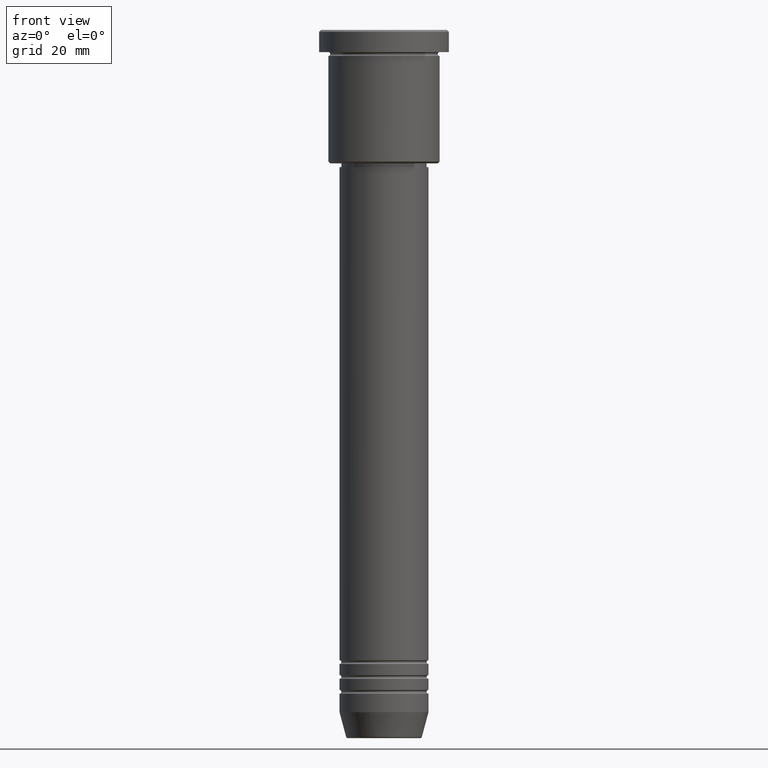
[diagram: clean part render]
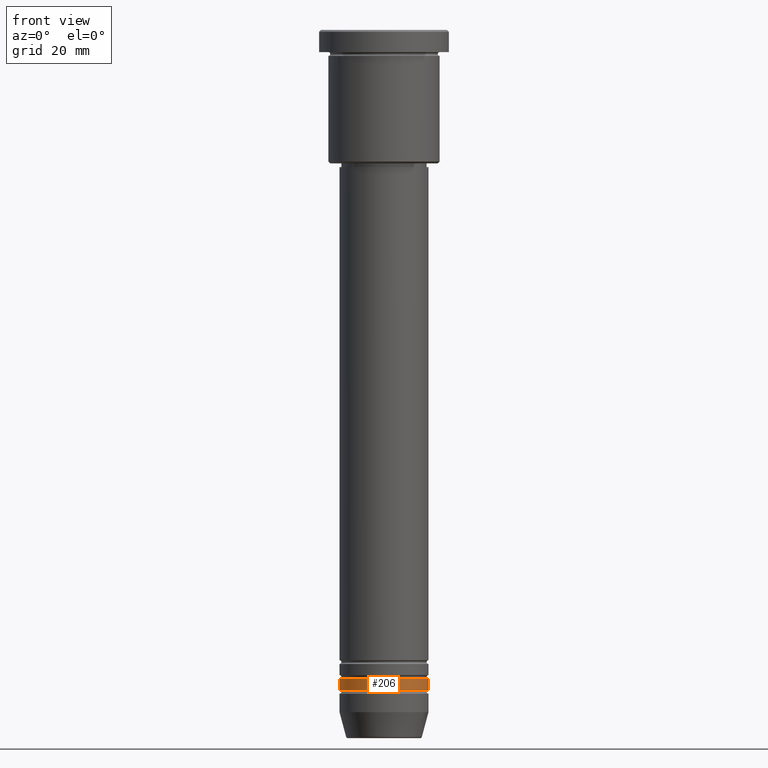
[diagram: same view with one face highlighted and labeled with its STEP entity id]
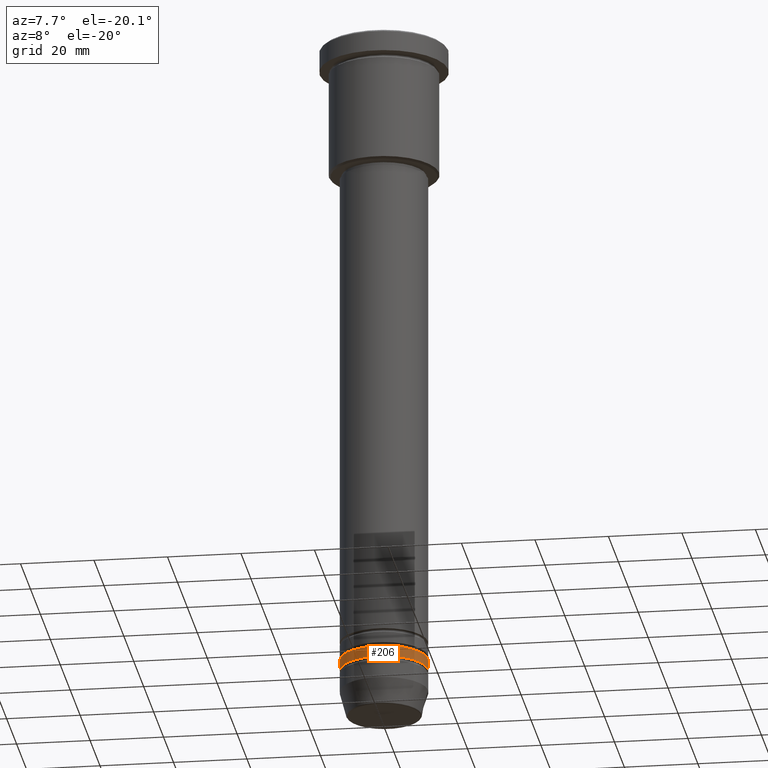
[diagram: same view with one face highlighted and labeled with its STEP entity id]
A machine part, front view. The second image highlights one B-rep face of the part: STEP entity #206.
A second angle (auxiliary view) of the same face is appended — the face is thin or edge-on in the first view.
In plain terms, the highlighted cylindrical surface (partial cylindrical patch) has radius 12 mm, axis along (-0, -0, 1).
Its self-contained STEP definition (entity closure, byte-faithful):
#1 = CARTESIAN_POINT ( 'NONE',  ( -12.00000000000000000, 1.469576158976823947E-15, 0.000000000000000000 ) ) ;
#17 = EDGE_CURVE ( 'NONE', #1001, #244, #391, .T. ) ;
#19 = ORIENTED_EDGE ( 'NONE', *, *, #878, .F. ) ;
#55 = VECTOR ( 'NONE', #733, 1000.000000000000000 ) ;
#116 = DIRECTION ( 'NONE',  ( 1.000000000000000000, 0.000000000000000000, 0.000000000000000000 ) ) ;
#125 = EDGE_CURVE ( 'NONE', #503, #1001, #816, .T. ) ;
#172 = CARTESIAN_POINT ( 'NONE',  ( -12.00000000000000000, 1.469576158976823947E-15, -174.9999999999999147 ) ) ;
#206 = ADVANCED_FACE ( 'NONE', ( #960 ), #620, .T. ) ;
#237 = ORIENTED_EDGE ( 'NONE', *, *, #17, .T. ) ;
#244 = VERTEX_POINT ( 'NONE', #515 ) ;
#251 = CARTESIAN_POINT ( 'NONE',  ( 0.000000000000000000, 0.000000000000000000, 0.000000000000000000 ) ) ;
#254 = AXIS2_PLACEMENT_3D ( 'NONE', #927, #1116, #116 ) ;
#282 = CARTESIAN_POINT ( 'NONE',  ( 12.00000000000000000, 0.000000000000000000, 0.000000000000000000 ) ) ;
#388 = CIRCLE ( 'NONE', #254, 12.00000000000000000 ) ;
#391 = LINE ( 'NONE', #282, #1022 ) ;
#393 = ORIENTED_EDGE ( 'NONE', *, *, #431, .F. ) ;
#423 = DIRECTION ( 'NONE',  ( 1.000000000000000000, 0.000000000000000000, 0.000000000000000000 ) ) ;
#431 = EDGE_CURVE ( 'NONE', #1156, #244, #388, .T. ) ;
#481 = CARTESIAN_POINT ( 'NONE',  ( 0.000000000000000000, 0.000000000000000000, -177.9999999999998863 ) ) ;
#503 = VERTEX_POINT ( 'NONE', #763 ) ;
#515 = CARTESIAN_POINT ( 'NONE',  ( 12.00000000000000000, 0.000000000000000000, -174.9999999999999147 ) ) ;
#546 = DIRECTION ( 'NONE',  ( -0.000000000000000000, -0.000000000000000000, 1.000000000000000000 ) ) ;
#589 = AXIS2_PLACEMENT_3D ( 'NONE', #251, #966, #423 ) ;
#602 = EDGE_LOOP ( 'NONE', ( #19, #662, #237, #393 ) ) ;
#620 = CYLINDRICAL_SURFACE ( 'NONE', #589, 12.00000000000000000 ) ;
#662 = ORIENTED_EDGE ( 'NONE', *, *, #125, .T. ) ;
#733 = DIRECTION ( 'NONE',  ( -0.000000000000000000, -0.000000000000000000, 1.000000000000000000 ) ) ;
#763 = CARTESIAN_POINT ( 'NONE',  ( -12.00000000000000000, 1.469576158976823947E-15, -177.9999999999998863 ) ) ;
#816 = CIRCLE ( 'NONE', #1008, 12.00000000000000000 ) ;
#848 = DIRECTION ( 'NONE',  ( -0.000000000000000000, -0.000000000000000000, 1.000000000000000000 ) ) ;
#852 = CARTESIAN_POINT ( 'NONE',  ( 12.00000000000000000, 0.000000000000000000, -177.9999999999998863 ) ) ;
#878 = EDGE_CURVE ( 'NONE', #503, #1156, #1099, .T. ) ;
#927 = CARTESIAN_POINT ( 'NONE',  ( 0.000000000000000000, 0.000000000000000000, -174.9999999999999147 ) ) ;
#960 = FACE_OUTER_BOUND ( 'NONE', #602, .T. ) ;
#966 = DIRECTION ( 'NONE',  ( -0.000000000000000000, -0.000000000000000000, 1.000000000000000000 ) ) ;
#1001 = VERTEX_POINT ( 'NONE', #852 ) ;
#1008 = AXIS2_PLACEMENT_3D ( 'NONE', #481, #848, #1036 ) ;
#1022 = VECTOR ( 'NONE', #546, 1000.000000000000000 ) ;
#1036 = DIRECTION ( 'NONE',  ( 1.000000000000000000, 0.000000000000000000, 0.000000000000000000 ) ) ;
#1099 = LINE ( 'NONE', #1, #55 ) ;
#1116 = DIRECTION ( 'NONE',  ( -0.000000000000000000, -0.000000000000000000, 1.000000000000000000 ) ) ;
#1156 = VERTEX_POINT ( 'NONE', #172 ) ;